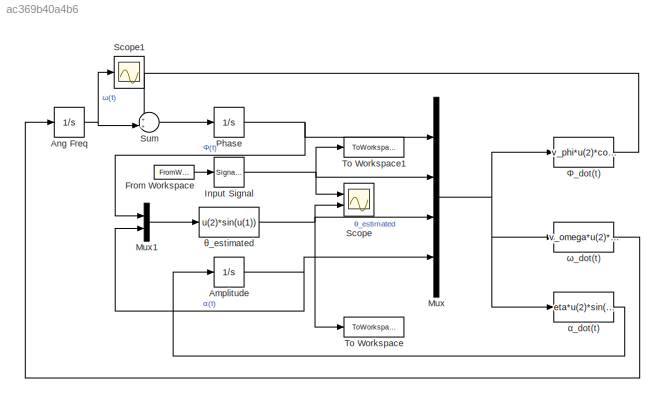
MODEL slx_ac369b40a4b6
KIND model
CONFIG AbsTol = auto
CONFIG EnableMultiTasking = off
CONFIG FixedStep = tsamp
CONFIG MaxStep = 0.01
CONFIG MinStep = auto
CONFIG RelTol = 1e-3
CONFIG SampleTimeConstraint = Unconstrained
CONFIG Solver = FixedStepAuto
CONFIG SolverName = FixedStepAuto
CONFIG StartTime = 0.0
CONFIG StopTime = N*T
BLOCK [Integrator] Amplitude
  ContinuousStateAttributes = 'Amplitude'
  InitialCondition = 0.1
  Ports = [1, 1]
BLOCK [Integrator] Ang Freq
  ContinuousStateAttributes = 'AngularFrequency'
  Ports = [1, 1]
BLOCK [FromWorkspace] From Workspace
  SampleTime = 0
  VariableName = t
  ZeroCross = on
BLOCK [SignalGenerator] Input Signal
  Amplitude = alpha_r
  Frequency = omega_r
  Ports = [1, 1]
  TimeSource = Use external signal
  Units = rad/sec
BLOCK [Mux] Mux
  DisplayOption = bar
  Ports = [4, 1]
BLOCK [Mux] Mux1
  DisplayOption = bar
  Inputs = 2
  Ports = [2, 1]
BLOCK [Integrator] Phase
  ContinuousStateAttributes = 'Phase'
  InitialCondition = 0.001
  Ports = [1, 1]
BLOCK [Scope] Scope
  Floating = off
  NumInputPorts = 2
  Ports = [2]
  ScopeSpecificationString = Simulink.scopes.TimeScopeBlockCfg('CurrentConfiguration', extmgr.ConfigurationSet(extmgr.Configuration('Core','General UI',true),extmgr.Configuration('Core','Source UI',true),extmgr.Configuration('Sources','WiredSimulink',true),extmgr.Configuration('Visuals','Time Domain',true,'SerializedDisplays',{struct('MinYLimReal','-0.43747','MaxYLimReal','0.43747','YLabelReal','','MinYLimMag','0.00000','MaxY...<+1373ch>
BLOCK [Scope] Scope1
  Floating = off
  NumInputPorts = 1
  Ports = [1]
  ScopeSpecificationString = Simulink.scopes.TimeScopeBlockCfg('CurrentConfiguration', extmgr.ConfigurationSet(extmgr.Configuration('Core','General UI',true),extmgr.Configuration('Core','Source UI',true),extmgr.Configuration('Sources','WiredSimulink',true,'DataLoggingVariableName','ScopeData1'),extmgr.Configuration('Visuals','Time Domain',true,'SerializedDisplays',{struct('MinYLimReal','-0.62265','MaxYLimReal','5.60381','YLab...<+1390ch>
BLOCK [Sum] Sum
  IconShape = round
  InputSameDT = off
  Inputs = ++|
  OutDataTypeStr = Inherit: Inherit via internal rule
  Ports = [2, 1]
  SaturateOnIntegerOverflow = off
BLOCK [ToWorkspace] To Workspace
  FixptAsFi = on
  MaxDataPoints = inf
  Ports = [1]
  SampleTime = -1
  SaveFormat = Timeseries
  VariableName = theta_estimated
BLOCK [ToWorkspace] To Workspace1
  FixptAsFi = on
  MaxDataPoints = inf
  Ports = [1]
  SampleTime = -1
  SaveFormat = Timeseries
  VariableName = theta
BLOCK [Fcn] Φ_dot(t)
  Expr = v_phi*u(2)*cos(u(1))/u(4) - v_phi*u(3)*cos(u(1))/u(4)
BLOCK [Fcn] α_dot(t)
  Expr = eta*u(2)*sin(u(1))- eta*u(3)*sin(u(1))
BLOCK [Fcn] θ_estimated
  Expr = u(2)*sin(u(1))
BLOCK [Fcn] ω_dot(t)
  Expr = v_omega*u(2)*cos(u(1))/u(4) - v_omega*u(3)*cos(u(1))/u(4)
NET Amplitude:1 -> Mux1:2, Mux:4
NET Ang Freq:1 -> Scope1:1, Sum:2
LINE From Workspace:1 -> Input Signal:1
NET Input Signal:1 -> Mux:2, Scope:1, To Workspace1:1
LINE Mux1:1 -> θ_estimated:1
NET Mux:1 -> Φ_dot(t):1, α_dot(t):1, ω_dot(t):1
NET Phase:1 -> Mux1:1, Mux:1
LINE Sum:1 -> Phase:1
LINE Φ_dot(t):1 -> Sum:1
LINE α_dot(t):1 -> Amplitude:1
NET θ_estimated:1 -> Mux:3, Scope:2, To Workspace:1
LINE ω_dot(t):1 -> Ang Freq:1
note: NET lines group one-source signal fan-out (src -> all destinations, sorted); 1:1 wires keep LINE
